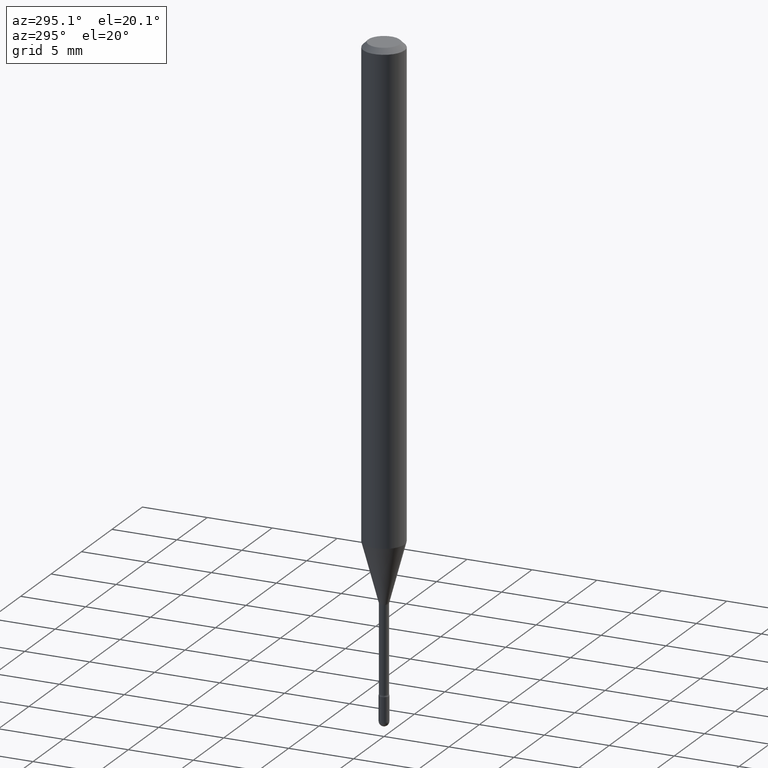
[diagram: clean part render]
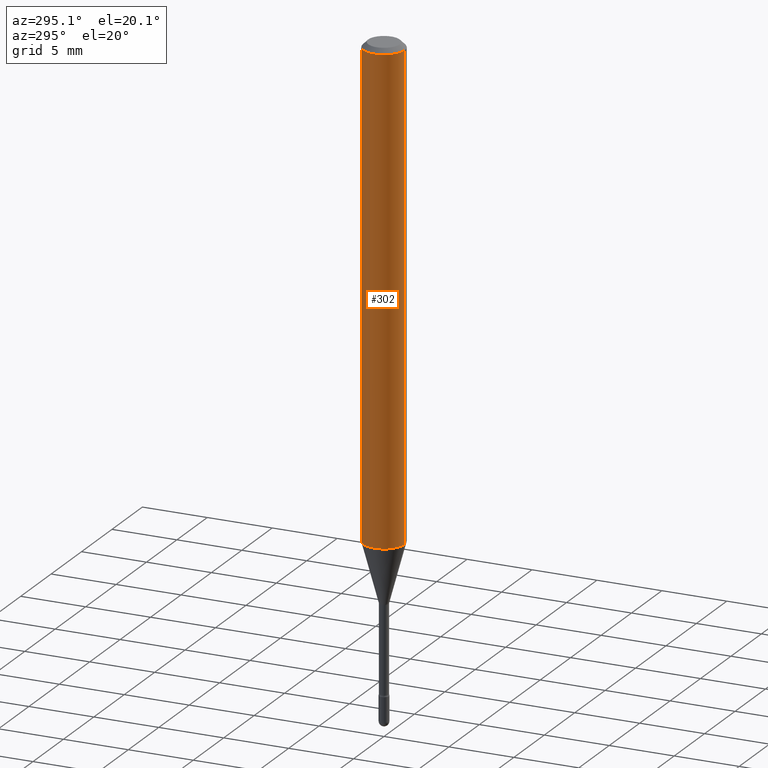
[diagram: same view with one face highlighted and labeled with its STEP entity id]
A machine part, auxiliary view. The second image highlights one B-rep face of the part: STEP entity #302.
In plain terms, the highlighted cylindrical surface (edge-blend (fillet) strip) has radius 1.5875 mm, axis along (-0, 0, 1).
Its self-contained STEP definition (entity closure, byte-faithful):
#1 = CARTESIAN_POINT ( 'NONE',  ( -1.169113584055446105E-44, 1.669184350826100908E-30, 4.780733988912460139E-16 ) ) ;
#9 = AXIS2_PLACEMENT_3D ( 'NONE', #222, #393, #125 ) ;
#35 = DIRECTION ( 'NONE',  ( -6.982962677686265922E-15, -1.000000000000000000, 3.491473442334732146E-15 ) ) ;
#44 = EDGE_LOOP ( 'NONE', ( #437, #505, #253, #210 ) ) ;
#52 = LINE ( 'NONE', #467, #352 ) ;
#82 = AXIS2_PLACEMENT_3D ( 'NONE', #1, #463, #35 ) ;
#89 = CARTESIAN_POINT ( 'NONE',  ( 4.440892098500625669E-16, 0.06250000000000000000, 2.598563087453252794E-16 ) ) ;
#96 = CARTESIAN_POINT ( 'NONE',  ( 4.440892098500981149E-16, 0.06249999999999489991, -1.459368740913666862 ) ) ;
#115 = CYLINDRICAL_SURFACE ( 'NONE', #82, 0.06250000000000000000 ) ;
#125 = DIRECTION ( 'NONE',  ( -6.982962677686265922E-15, -1.000000000000000000, 3.483106191921935554E-15 ) ) ;
#132 = LINE ( 'NONE', #89, #374 ) ;
#157 = FACE_OUTER_BOUND ( 'NONE', #44, .T. ) ;
#171 = EDGE_CURVE ( 'NONE', #334, #301, #263, .T. ) ;
#179 = CARTESIAN_POINT ( 'NONE',  ( 4.440892098500985093E-16, 0.06249999999999995143, -0.01500000000000030129 ) ) ;
#210 = ORIENTED_EDGE ( 'NONE', *, *, #171, .F. ) ;
#216 = CIRCLE ( 'NONE', #233, 0.06250000000000000000 ) ;
#222 = CARTESIAN_POINT ( 'NONE',  ( 3.668211480431254910E-31, -5.237210163502127580E-17, -0.01500000000000008271 ) ) ;
#227 = EDGE_CURVE ( 'NONE', #525, #301, #52, .T. ) ;
#233 = AXIS2_PLACEMENT_3D ( 'NONE', #447, #240, #504 ) ;
#240 = DIRECTION ( 'NONE',  ( -2.445474320287489972E-29, 3.491473442334732541E-15, 1.000000000000000000 ) ) ;
#244 = CARTESIAN_POINT ( 'NONE',  ( -4.364351673553912750E-16, -0.06250000000000005551, -0.01499999999999986587 ) ) ;
#253 = ORIENTED_EDGE ( 'NONE', *, *, #227, .T. ) ;
#258 = DIRECTION ( 'NONE',  ( -2.445474320287489692E-29, 3.491473442334732541E-15, 1.000000000000000000 ) ) ;
#263 = CIRCLE ( 'NONE', #9, 0.06250000000000000000 ) ;
#267 = EDGE_CURVE ( 'NONE', #290, #334, #132, .T. ) ;
#290 = VERTEX_POINT ( 'NONE', #96 ) ;
#301 = VERTEX_POINT ( 'NONE', #244 ) ;
#302 = ADVANCED_FACE ( 'NONE', ( #157 ), #115, .T. ) ;
#310 = DIRECTION ( 'NONE',  ( -2.445474320287489692E-29, 3.491473442334732541E-15, 1.000000000000000000 ) ) ;
#334 = VERTEX_POINT ( 'NONE', #179 ) ;
#352 = VECTOR ( 'NONE', #258, 39.37007874015748143 ) ;
#374 = VECTOR ( 'NONE', #310, 39.37007874015748143 ) ;
#393 = DIRECTION ( 'NONE',  ( -2.445474320287489972E-29, 3.491473442334732541E-15, 1.000000000000000000 ) ) ;
#406 = CARTESIAN_POINT ( 'NONE',  ( -4.364351673553560228E-16, -0.06250000000000510703, -1.459368740913666196 ) ) ;
#437 = ORIENTED_EDGE ( 'NONE', *, *, #267, .F. ) ;
#447 = CARTESIAN_POINT ( 'NONE',  ( 3.568848779734659217E-29, -5.095347201473544017E-15, -1.459368740913666640 ) ) ;
#463 = DIRECTION ( 'NONE',  ( -2.445474320287489972E-29, 3.491473442334732541E-15, 1.000000000000000000 ) ) ;
#467 = CARTESIAN_POINT ( 'NONE',  ( -4.364351673553916201E-16, -0.06250000000000000000, 6.962904890371667977E-16 ) ) ;
#494 = EDGE_CURVE ( 'NONE', #290, #525, #216, .T. ) ;
#504 = DIRECTION ( 'NONE',  ( -6.982962677686265922E-15, -1.000000000000000000, 4.370956789862821150E-15 ) ) ;
#505 = ORIENTED_EDGE ( 'NONE', *, *, #494, .T. ) ;
#525 = VERTEX_POINT ( 'NONE', #406 ) ;